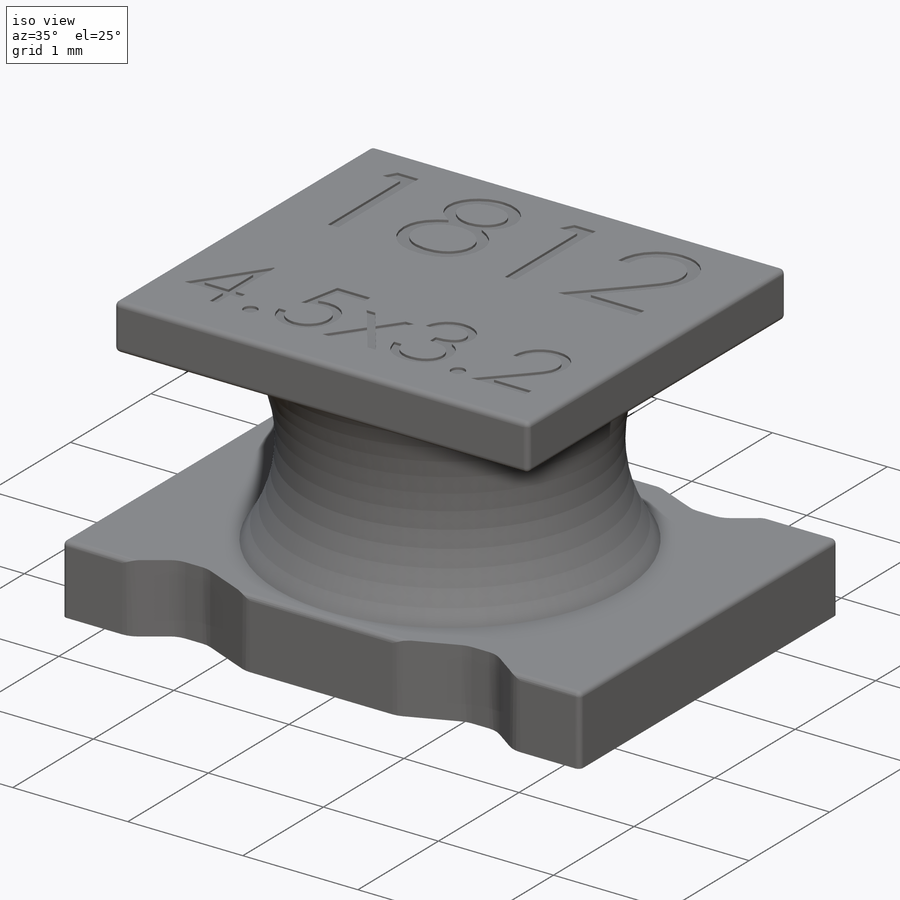
[diagram: iso view]
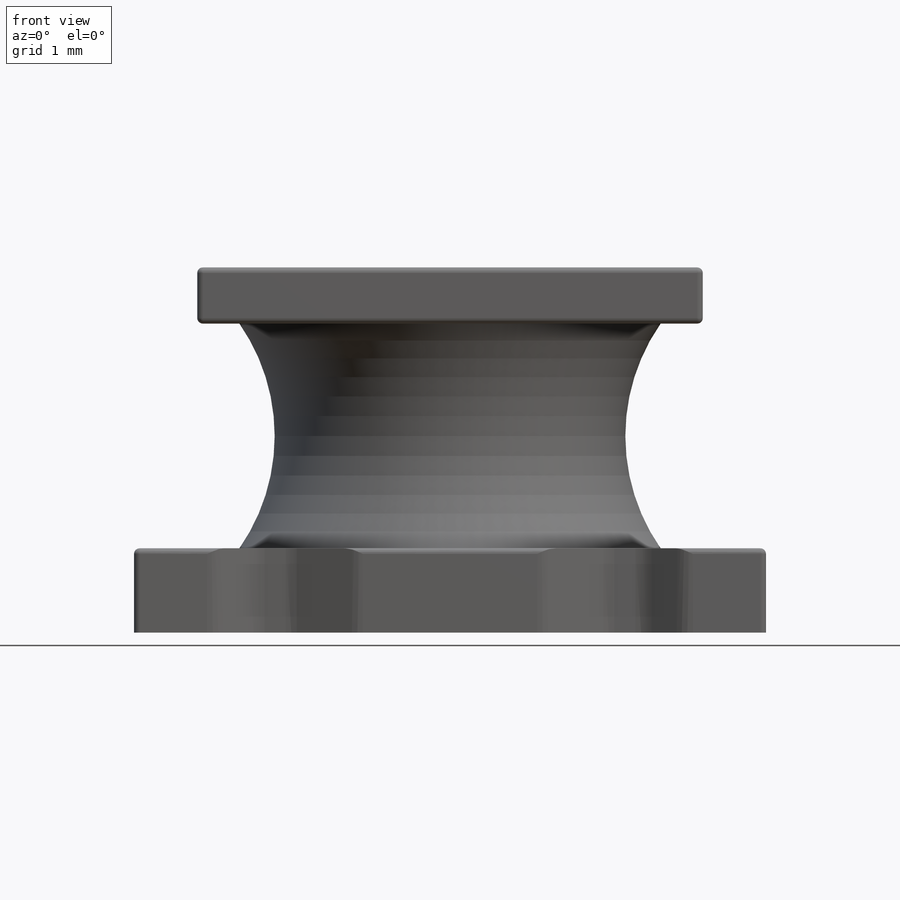
[diagram: front view]
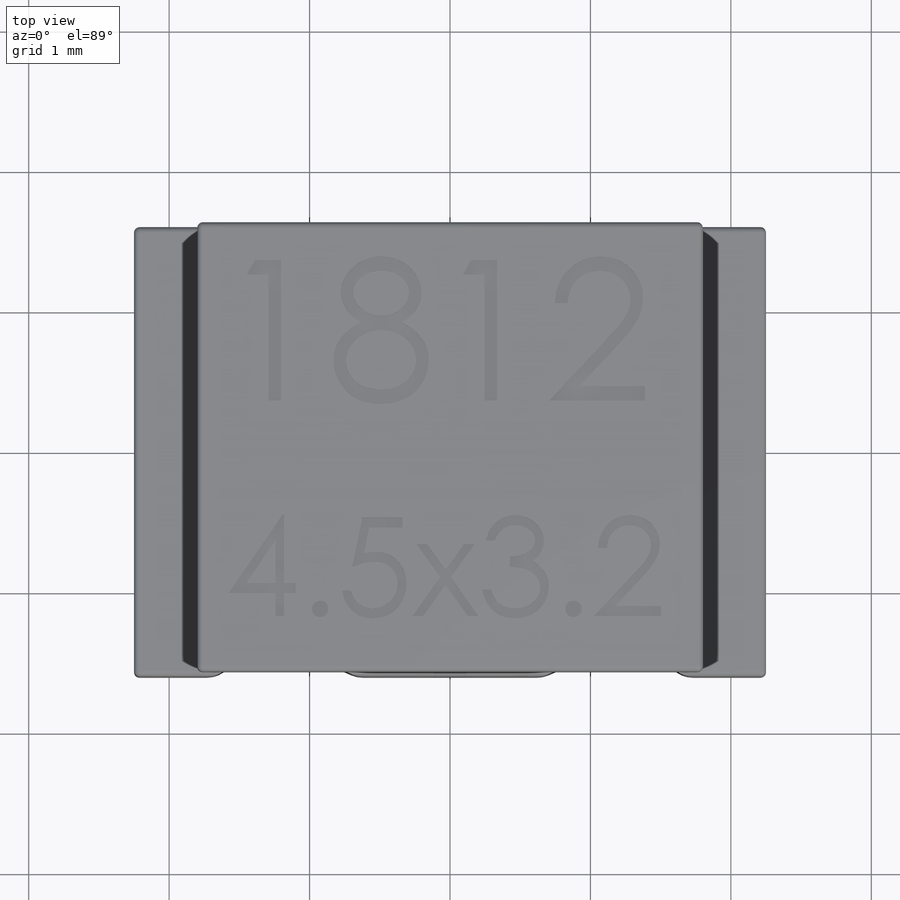
[diagram: top view]
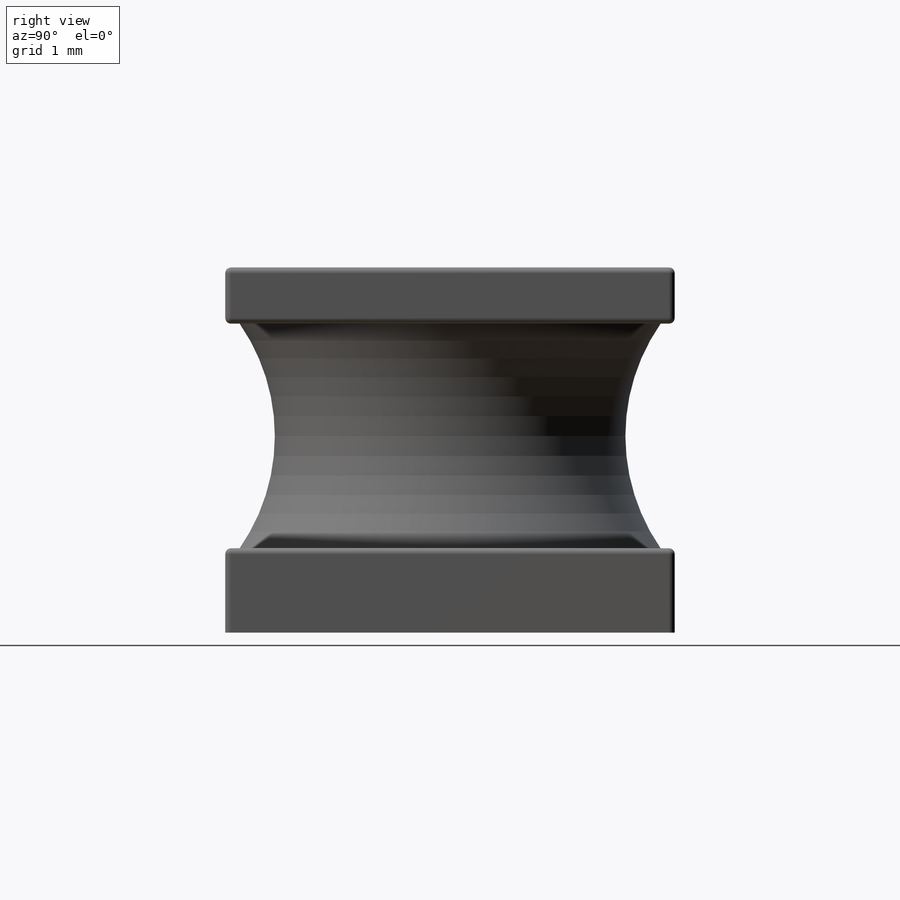
[diagram: right view]
SOLIDWORKS PART (.sldprt)
format: sldprt  version: not decoded by parser v0  size: 561,664 bytes
history: native  units: mm
features: sketch x6, cut_extrude x4, material x1, extrude x1, cut_revolve x1, fillet x1 (+12 scaffold rows collapsed)
feature tree (26):
  scaffold x12  (default folders/planes/origin — collapsed)
  material  "Material <not specified>"
  sketch  "Sketch1"  dims[D1=4.5mm D2=3.2mm]
  extrude  "Boss-Extrude1"  Depth=2.6mm
  sketch  "Sketch3"  dims[c1.D5=1.4mm c1.D1=3.2mm c1.D2=0.4mm c1.D3=0.6mm c1.D4=2.4mm c2.D5=1.3mm c2.D4=1.5mm]
  cut_revolve  "Cut-Revolve1"  Angle=360deg
  sketch  "Sketch4"  dims[D1=3.6mm D2=1.0mm D3=3.5mm]
  cut_extrude  "Cut-Extrude2"  Depth=1.5mm
  fillet  "Fillet1"  Radius=0.04mm
  sketch  "Sketch5"  dims[D1=0.2mm D2=0.4mm D3=0.5mm D4=0.15mm D5=0.12mm D6=0.12mm D7=0.2mm D8=1.17mm D9=0.3mm]
  cut_extrude  "Cut-Extrude3"  Depth=1mm
  sketch  "Sketch6"
  cut_extrude  "Cut-Extrude4"  Depth=0.02mm
  sketch  "Sketch7"
  cut_extrude  "Cut-Extrude5"  Depth=0.02mm
decode coverage: 11 of 13 modeling features carry decoded parameters
note: suppression state not decoded; provenance and decode notes live in map.json
